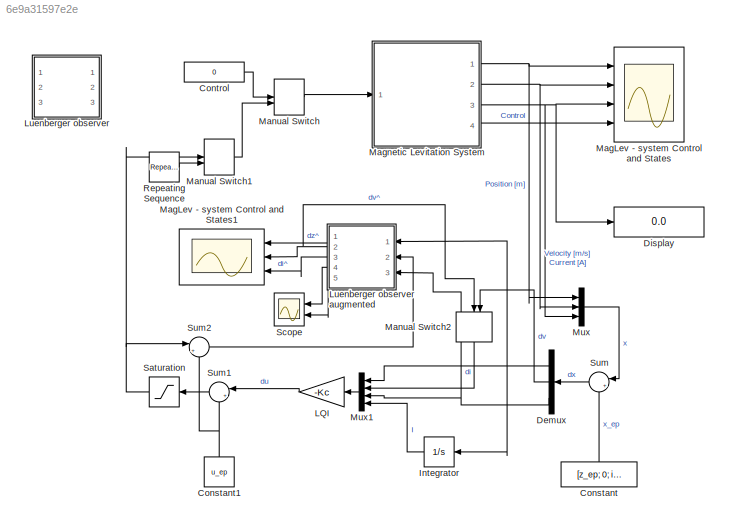
MODEL slx_6e9a31597e2e
KIND model
CONFIG AbsTol = 1e-6
CONFIG FixedStep = 0.001
CONFIG InitFcn = load ml_sensor
CONFIG MaxStep = auto
CONFIG MinStep = auto
CONFIG RelTol = 1e-3
CONFIG SampleTimeConstraint = Unconstrained
CONFIG Solver = ode5
CONFIG SolverMode = SingleTasking
CONFIG SolverName = ode5
CONFIG StartTime = 0.0
CONFIG StopTime = inf
BLOCK [Constant] Constant
  Value = [z_ep; 0; i_ep]
BLOCK [Constant] Constant1
  Value = u_ep
BLOCK [Constant] Control
  Value = 0
BLOCK [Demux] Demux
  DisplayOption = bar
  Outputs = 3
  Ports = [1, 3]
BLOCK [Display] Display
  Decimation = 1
  Ports = [1]
BLOCK [Integrator] Integrator
  Ports = [1, 1]
BLOCK [Gain] LQI
  Gain = -Kc
  Multiplication = Matrix(K*u) (u vector)
  OutDataTypeStr = Inherit: Inherit via internal rule
  ParamDataTypeStr = Inherit: Inherit via internal rule
  SaturateOnIntegerOverflow = off
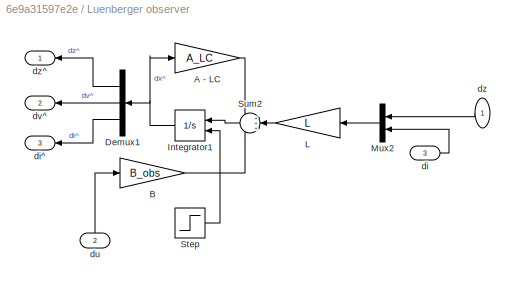
BLOCK [SubSystem] Luenberger observer
  Commented = on
  Ports = [3, 3]
  RequestExecContextInheritance = off
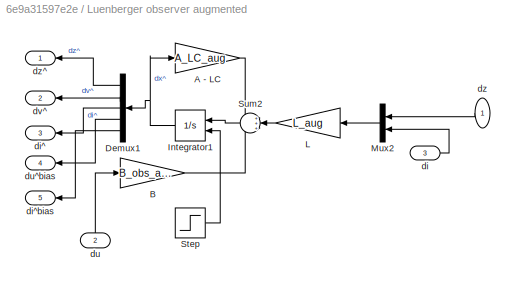
BLOCK [SubSystem] Luenberger observer augmented
  Ports = [3, 5]
  RequestExecContextInheritance = off
BLOCK [Gain] Luenberger observer augmented/A - LC
  Gain = A_LC_aug
  Multiplication = Matrix(K*u) (u vector)
  OutDataTypeStr = Inherit: Inherit via internal rule
  ParamDataTypeStr = Inherit: Inherit via internal rule
  SaturateOnIntegerOverflow = off
BLOCK [Gain] Luenberger observer augmented/B
  Gain = B_obs_aug
  Multiplication = Matrix(K*u) (u vector)
  OutDataTypeStr = Inherit: Inherit via internal rule
  ParamDataTypeStr = Inherit: Inherit via internal rule
  SaturateOnIntegerOverflow = off
BLOCK [Demux] Luenberger observer augmented/Demux1
  DisplayOption = bar
  Outputs = 5
  Ports = [1, 5]
BLOCK [Integrator] Luenberger observer augmented/Integrator1
  ExternalReset = rising
  Ports = [2, 1]
BLOCK [Gain] Luenberger observer augmented/L
  Gain = L_aug
  Multiplication = Matrix(K*u) (u vector)
  OutDataTypeStr = Inherit: Inherit via internal rule
  ParamDataTypeStr = Inherit: Inherit via internal rule
  SaturateOnIntegerOverflow = off
BLOCK [Mux] Luenberger observer augmented/Mux2
  DisplayOption = bar
  Inputs = 2
  Ports = [2, 1]
BLOCK [Step] Luenberger observer augmented/Step
  SampleTime = 0
  Time = 5
BLOCK [Sum] Luenberger observer augmented/Sum2
  IconShape = round
  InputSameDT = off
  Inputs = +++
  OutDataTypeStr = Inherit: Inherit via internal rule
  Ports = [3, 1]
  SaturateOnIntegerOverflow = off
BLOCK [Inport] Luenberger observer augmented/di
  IconDisplay = Port number
  Port = 3
BLOCK [Outport] Luenberger observer augmented/di^
  IconDisplay = Port number
  Port = 3
BLOCK [Outport] Luenberger observer augmented/di^bias
  IconDisplay = Port number
  Port = 5
BLOCK [Inport] Luenberger observer augmented/du
  IconDisplay = Port number
  Port = 2
BLOCK [Outport] Luenberger observer augmented/du^bias
  IconDisplay = Port number
  Port = 4
BLOCK [Outport] Luenberger observer augmented/dv^
  IconDisplay = Port number
  Port = 2
BLOCK [Inport] Luenberger observer augmented/dz
  IconDisplay = Port number
BLOCK [Outport] Luenberger observer augmented/dz^
  IconDisplay = Port number
BLOCK [Gain] Luenberger observer/A - LC
  Gain = A_LC
  Multiplication = Matrix(K*u) (u vector)
  OutDataTypeStr = Inherit: Inherit via internal rule
  ParamDataTypeStr = Inherit: Inherit via internal rule
  SaturateOnIntegerOverflow = off
BLOCK [Gain] Luenberger observer/B
  Gain = B_obs
  Multiplication = Matrix(K*u) (u vector)
  OutDataTypeStr = Inherit: Inherit via internal rule
  ParamDataTypeStr = Inherit: Inherit via internal rule
  SaturateOnIntegerOverflow = off
BLOCK [Demux] Luenberger observer/Demux1
  DisplayOption = bar
  Outputs = 3
  Ports = [1, 3]
BLOCK [Integrator] Luenberger observer/Integrator1
  ExternalReset = rising
  Ports = [2, 1]
BLOCK [Gain] Luenberger observer/L
  Gain = L
  Multiplication = Matrix(K*u) (u vector)
  OutDataTypeStr = Inherit: Inherit via internal rule
  ParamDataTypeStr = Inherit: Inherit via internal rule
  SaturateOnIntegerOverflow = off
BLOCK [Mux] Luenberger observer/Mux2
  DisplayOption = bar
  Inputs = 2
  Ports = [2, 1]
BLOCK [Step] Luenberger observer/Step
  SampleTime = 0
  Time = 5
BLOCK [Sum] Luenberger observer/Sum2
  IconShape = round
  InputSameDT = off
  Inputs = +++
  OutDataTypeStr = Inherit: Inherit via internal rule
  Ports = [3, 1]
  SaturateOnIntegerOverflow = off
BLOCK [Inport] Luenberger observer/di
  IconDisplay = Port number
  Port = 3
BLOCK [Outport] Luenberger observer/di^
  IconDisplay = Port number
  Port = 3
BLOCK [Inport] Luenberger observer/du
  IconDisplay = Port number
  Port = 2
BLOCK [Outport] Luenberger observer/dv^
  IconDisplay = Port number
  Port = 2
BLOCK [Inport] Luenberger observer/dz
  IconDisplay = Port number
BLOCK [Outport] Luenberger observer/dz^
  IconDisplay = Port number
BLOCK [Scope] MagLev - system Control and States
  DataFormat = StructureWithTime
  ExtModeLoggingTrig = on
  ExtModeUploadOption = log
  Floating = off
  LimitDataPoints = off
  MaxDataPoints = 10000
  NumInputPorts = 4
  Ports = [4]
  SaveName = MLExpData
  SaveToWorkspace = on
  TimeRange = 10.1
  YMax = 0.0098~0.04~1.025~0.5
  YMin = 0.0095~-0.045~0.8~0.225
BLOCK [Scope] MagLev - system Control and States1
  DataFormat = StructureWithTime
  Floating = off
  LimitDataPoints = off
  MaxDataPoints = 10000
  NumInputPorts = 3
  Ports = [3]
  SaveName = MLExpData1
  SaveToWorkspace = on
  TimeRange = 10.1
  YMax = -0.00045~0.00175~-0.045
  YMin = -0.00095~-0.00125~-0.11
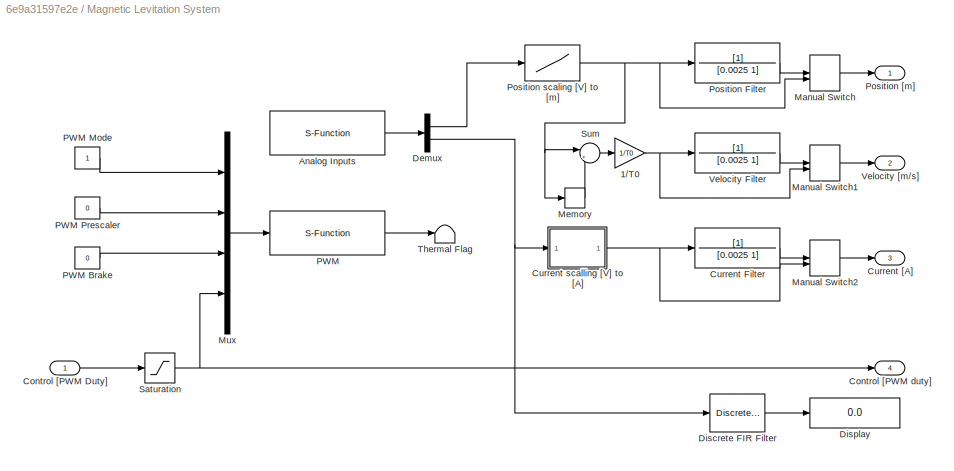
BLOCK [SubSystem] Magnetic Levitation System
  Ports = [1, 4]
  RequestExecContextInheritance = off
BLOCK [Gain] Magnetic Levitation System/1//T0
  Gain = 1/T0
BLOCK [S-Function] Magnetic Levitation System/Analog Inputs
  FunctionName = ML_AnalogInputs
  Parameters = BA, [4 2], [1 1], T0
  Ports = [0, 1]
BLOCK [Inport] Magnetic Levitation System/Control [PWM Duty]
  IconDisplay = Port number
BLOCK [Outport] Magnetic Levitation System/Control [PWM duty]
  IconDisplay = Port number
  Port = 4
BLOCK [TransferFcn] Magnetic Levitation System/Current Filter
  Denominator = [0.0025 1]
BLOCK [Outport] Magnetic Levitation System/Current [A]
  IconDisplay = Port number
  Port = 3
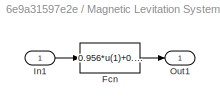
BLOCK [SubSystem] Magnetic Levitation System/Current scalling [V] to [A]
  Ports = [1, 1]
  RequestExecContextInheritance = off
BLOCK [Fcn] Magnetic Levitation System/Current scalling [V] to [A]/Fcn
  Expr = 0.956*u(1)+0.0401
BLOCK [Inport] Magnetic Levitation System/Current scalling [V] to [A]/In1
  IconDisplay = Port number
BLOCK [Outport] Magnetic Levitation System/Current scalling [V] to [A]/Out1
  IconDisplay = Port number
BLOCK [Demux] Magnetic Levitation System/Demux
  Outputs = 2
  Ports = [1, 2]
BLOCK [DiscreteFir] Magnetic Levitation System/Discrete FIR Filter
  Coefficients = ones(1,1000)/1000
  Ports = [1, 1]
BLOCK [Display] Magnetic Levitation System/Display
  Decimation = 1
  Ports = [1]
BLOCK [ManualSwitch] Magnetic Levitation System/Manual Switch
  CurrentSetting = 0
BLOCK [ManualSwitch] Magnetic Levitation System/Manual Switch1
BLOCK [ManualSwitch] Magnetic Levitation System/Manual Switch2
  CurrentSetting = 0
BLOCK [Memory] Magnetic Levitation System/Memory
BLOCK [Mux] Magnetic Levitation System/Mux
  DisplayOption = bar
  Ports = [4, 1]
BLOCK [S-Function] Magnetic Levitation System/PWM
  FunctionName = ML_PWM
  Parameters = BA, T0
  Ports = [1, 1]
BLOCK [Constant] Magnetic Levitation System/PWM Brake
  Value = 0
BLOCK [Constant] Magnetic Levitation System/PWM Mode
BLOCK [Constant] Magnetic Levitation System/PWM Prescaler
  Value = 0
BLOCK [TransferFcn] Magnetic Levitation System/Position Filter
  Denominator = [0.0025 1]
BLOCK [Outport] Magnetic Levitation System/Position [m]
  IconDisplay = Port number
BLOCK [Lookup] Magnetic Levitation System/Position scaling [V] to [m]
  InputValues = SensorData.Sensor_V(end:-1:1)
  Table = SensorData.Distance_m(end:-1:1)
BLOCK [Saturate] Magnetic Levitation System/Saturation
  InputPortMap = u0
  LowerLimit = 0
  Ports = [1, 1]
  UpperLimit = 1
BLOCK [Sum] Magnetic Levitation System/Sum
  IconShape = round
  Inputs = |+-
  Ports = [2, 1]
BLOCK [Terminator] Magnetic Levitation System/Thermal Flag
BLOCK [TransferFcn] Magnetic Levitation System/Velocity Filter
  Denominator = [0.0025 1]
BLOCK [Outport] Magnetic Levitation System/Velocity [m//s]
  IconDisplay = Port number
  Port = 2
BLOCK [ManualSwitch] Manual Switch
  CurrentSetting = 0
BLOCK [ManualSwitch] Manual Switch1
BLOCK [ManualSwitch] Manual Switch2
BLOCK [Mux] Mux
  DisplayOption = bar
  Inputs = 3
  Ports = [3, 1]
BLOCK [Mux] Mux1
  DisplayOption = bar
  Ports = [4, 1]
BLOCK [Reference] Repeating Sequence  REF=simulink/Sources/Repeating
Sequence
  Ports = [0, 1]
  SourceBlock = simulink/Sources/Repeating\nSequence
  SourceType = Repeating table
  rep_seq_t = [0 1 10]
  rep_seq_y = [0 1 1]
BLOCK [Saturate] Saturation
  InputPortMap = u0
  LowerLimit = 0
  Ports = [1, 1]
  UpperLimit = 1
BLOCK [Scope] Scope
  Floating = off
  NumInputPorts = 2
  Ports = [2]
  YMax = 0.08325~-0.3355
  YMin = 0.08235~-0.344
BLOCK [Sum] Sum
  IconShape = round
  InputSameDT = off
  Inputs = |+-
  OutDataTypeStr = Inherit: Inherit via internal rule
  Ports = [2, 1]
  SaturateOnIntegerOverflow = off
BLOCK [Sum] Sum1
  IconShape = round
  InputSameDT = off
  Inputs = |++
  OutDataTypeStr = Inherit: Inherit via internal rule
  Ports = [2, 1]
  SaturateOnIntegerOverflow = off
BLOCK [Sum] Sum2
  IconShape = round
  InputSameDT = off
  Inputs = |+-
  OutDataTypeStr = Inherit: Inherit via internal rule
  Ports = [2, 1]
  SaturateOnIntegerOverflow = off
NET Constant1:1 -> Sum1:2, Sum2:2
LINE Constant:1 -> Sum:2
LINE Control:1 -> Manual Switch:1
NET Demux:1 -> Integrator:1, Luenberger observer augmented:1, Mux1:1
LINE Demux:2 -> Manual Switch2:2
NET Demux:3 -> Luenberger observer augmented:3, Mux1:3
LINE Integrator:1 -> Mux1:4
LINE LQI:1 -> Sum1:1
LINE Luenberger observer augmented/A - LC:1 -> Luenberger observer augmented/Sum2:1
LINE Luenberger observer augmented/B:1 -> Luenberger observer augmented/Sum2:3
LINE Luenberger observer augmented/Demux1:1 -> Luenberger observer augmented/dz^:1
LINE Luenberger observer augmented/Demux1:2 -> Luenberger observer augmented/dv^:1
LINE Luenberger observer augmented/Demux1:3 -> Luenberger observer augmented/di^:1
LINE Luenberger observer augmented/Demux1:4 -> Luenberger observer augmented/du^bias:1
LINE Luenberger observer augmented/Demux1:5 -> Luenberger observer augmented/di^bias:1
NET Luenberger observer augmented/Integrator1:1 -> Luenberger observer augmented/A - LC:1, Luenberger observer augmented/Demux1:1
LINE Luenberger observer augmented/L:1 -> Luenberger observer augmented/Sum2:2
LINE Luenberger observer augmented/Mux2:1 -> Luenberger observer augmented/L:1
LINE Luenberger observer augmented/Step:1 -> Luenberger observer augmented/Integrator1:2
LINE Luenberger observer augmented/Sum2:1 -> Luenberger observer augmented/Integrator1:1
LINE Luenberger observer augmented/di:1 -> Luenberger observer augmented/Mux2:2
LINE Luenberger observer augmented/du:1 -> Luenberger observer augmented/B:1
LINE Luenberger observer augmented/dz:1 -> Luenberger observer augmented/Mux2:1
LINE Luenberger observer augmented:1 -> MagLev - system Control and States1:1
NET Luenberger observer augmented:2 -> MagLev - system Control and States1:2, Manual Switch2:1
LINE Luenberger observer augmented:3 -> MagLev - system Control and States1:3
LINE Luenberger observer augmented:4 -> Scope:1
LINE Luenberger observer augmented:5 -> Scope:2
LINE Luenberger observer/A - LC:1 -> Luenberger observer/Sum2:1
LINE Luenberger observer/B:1 -> Luenberger observer/Sum2:3
LINE Luenberger observer/Demux1:1 -> Luenberger observer/dz^:1
LINE Luenberger observer/Demux1:2 -> Luenberger observer/dv^:1
LINE Luenberger observer/Demux1:3 -> Luenberger observer/di^:1
NET Luenberger observer/Integrator1:1 -> Luenberger observer/A - LC:1, Luenberger observer/Demux1:1
LINE Luenberger observer/L:1 -> Luenberger observer/Sum2:2
LINE Luenberger observer/Mux2:1 -> Luenberger observer/L:1
LINE Luenberger observer/Step:1 -> Luenberger observer/Integrator1:2
LINE Luenberger observer/Sum2:1 -> Luenberger observer/Integrator1:1
LINE Luenberger observer/di:1 -> Luenberger observer/Mux2:2
LINE Luenberger observer/du:1 -> Luenberger observer/B:1
LINE Luenberger observer/dz:1 -> Luenberger observer/Mux2:1
NET Magnetic Levitation System/1//T0:1 -> Magnetic Levitation System/Manual Switch1:2, Magnetic Levitation System/Velocity Filter:1
LINE Magnetic Levitation System/Analog Inputs:1 -> Magnetic Levitation System/Demux:1
LINE Magnetic Levitation System/Control [PWM Duty]:1 -> Magnetic Levitation System/Saturation:1
LINE Magnetic Levitation System/Current Filter:1 -> Magnetic Levitation System/Manual Switch2:1
LINE Magnetic Levitation System/Current scalling [V] to [A]/Fcn:1 -> Magnetic Levitation System/Current scalling [V] to [A]/Out1:1
LINE Magnetic Levitation System/Current scalling [V] to [A]/In1:1 -> Magnetic Levitation System/Current scalling [V] to [A]/Fcn:1
NET Magnetic Levitation System/Current scalling [V] to [A]:1 -> Magnetic Levitation System/Current Filter:1, Magnetic Levitation System/Manual Switch2:2
LINE Magnetic Levitation System/Demux:1 -> Magnetic Levitation System/Position scaling [V] to [m]:1
NET Magnetic Levitation System/Demux:2 -> Magnetic Levitation System/Current scalling [V] to [A]:1, Magnetic Levitation System/Discrete FIR Filter:1
LINE Magnetic Levitation System/Discrete FIR Filter:1 -> Magnetic Levitation System/Display:1
LINE Magnetic Levitation System/Manual Switch1:1 -> Magnetic Levitation System/Velocity [m//s]:1
LINE Magnetic Levitation System/Manual Switch2:1 -> Magnetic Levitation System/Current [A]:1
LINE Magnetic Levitation System/Manual Switch:1 -> Magnetic Levitation System/Position [m]:1
LINE Magnetic Levitation System/Memory:1 -> Magnetic Levitation System/Sum:2
LINE Magnetic Levitation System/Mux:1 -> Magnetic Levitation System/PWM:1
LINE Magnetic Levitation System/PWM Brake:1 -> Magnetic Levitation System/Mux:3
LINE Magnetic Levitation System/PWM Mode:1 -> Magnetic Levitation System/Mux:1
LINE Magnetic Levitation System/PWM Prescaler:1 -> Magnetic Levitation System/Mux:2
LINE Magnetic Levitation System/PWM:1 -> Magnetic Levitation System/Thermal Flag:1
LINE Magnetic Levitation System/Position Filter:1 -> Magnetic Levitation System/Manual Switch:1
NET Magnetic Levitation System/Position scaling [V] to [m]:1 -> Magnetic Levitation System/Manual Switch:2, Magnetic Levitation System/Memory:1, Magnetic Levitation System/Position Filter:1, Magnetic Levitation System/Sum:1
NET Magnetic Levitation System/Saturation:1 -> Magnetic Levitation System/Control [PWM duty]:1, Magnetic Levitation System/Mux:4
LINE Magnetic Levitation System/Sum:1 -> Magnetic Levitation System/1//T0:1
LINE Magnetic Levitation System/Velocity Filter:1 -> Magnetic Levitation System/Manual Switch1:1
NET Magnetic Levitation System:1 -> MagLev - system Control and States:1, Mux:1
NET Magnetic Levitation System:2 -> MagLev - system Control and States:2, Mux:2
NET Magnetic Levitation System:3 -> Display:1, MagLev - system Control and States:3, Mux:3
LINE Magnetic Levitation System:4 -> MagLev - system Control and States:4
LINE Manual Switch1:1 -> Manual Switch:2
LINE Manual Switch2:1 -> Mux1:2
LINE Manual Switch:1 -> Magnetic Levitation System:1
LINE Mux1:1 -> LQI:1
LINE Mux:1 -> Sum:1
LINE Repeating Sequence:1 -> Manual Switch1:2
NET Saturation:1 -> Manual Switch1:1, Sum2:1
LINE Sum1:1 -> Saturation:1
LINE Sum2:1 -> Luenberger observer augmented:2
LINE Sum:1 -> Demux:1
note: NET lines group one-source signal fan-out (src -> all destinations, sorted); 1:1 wires keep LINE
